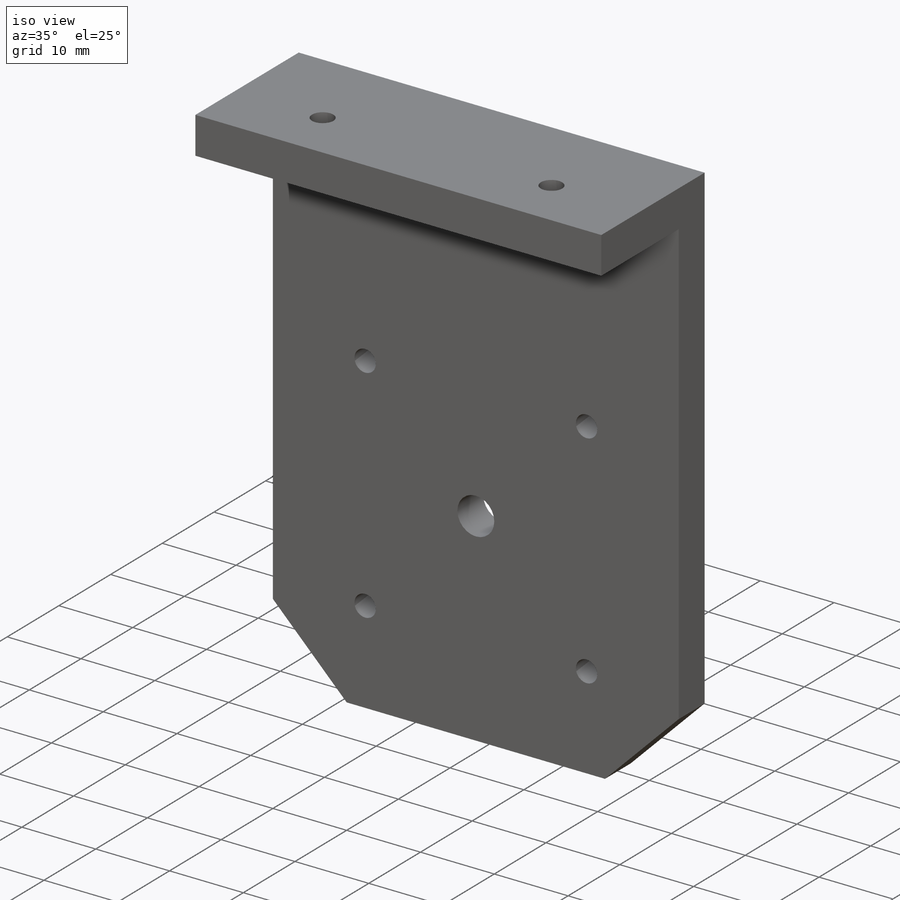
[diagram: iso view]
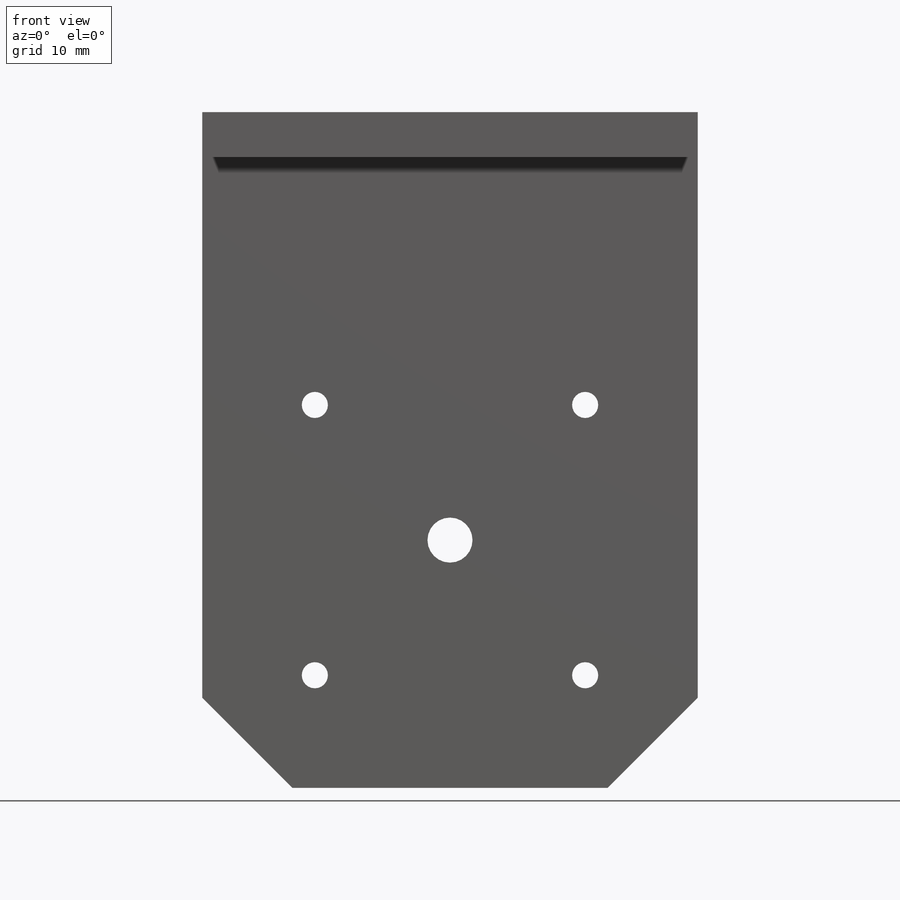
[diagram: front view]
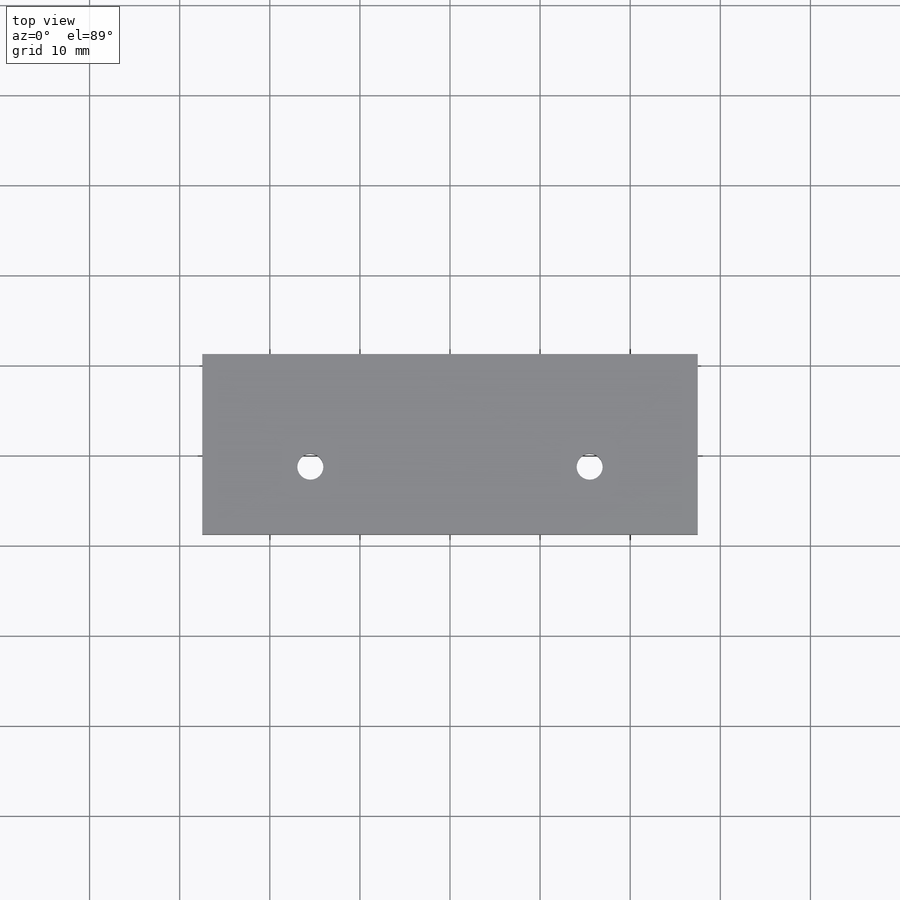
[diagram: top view]
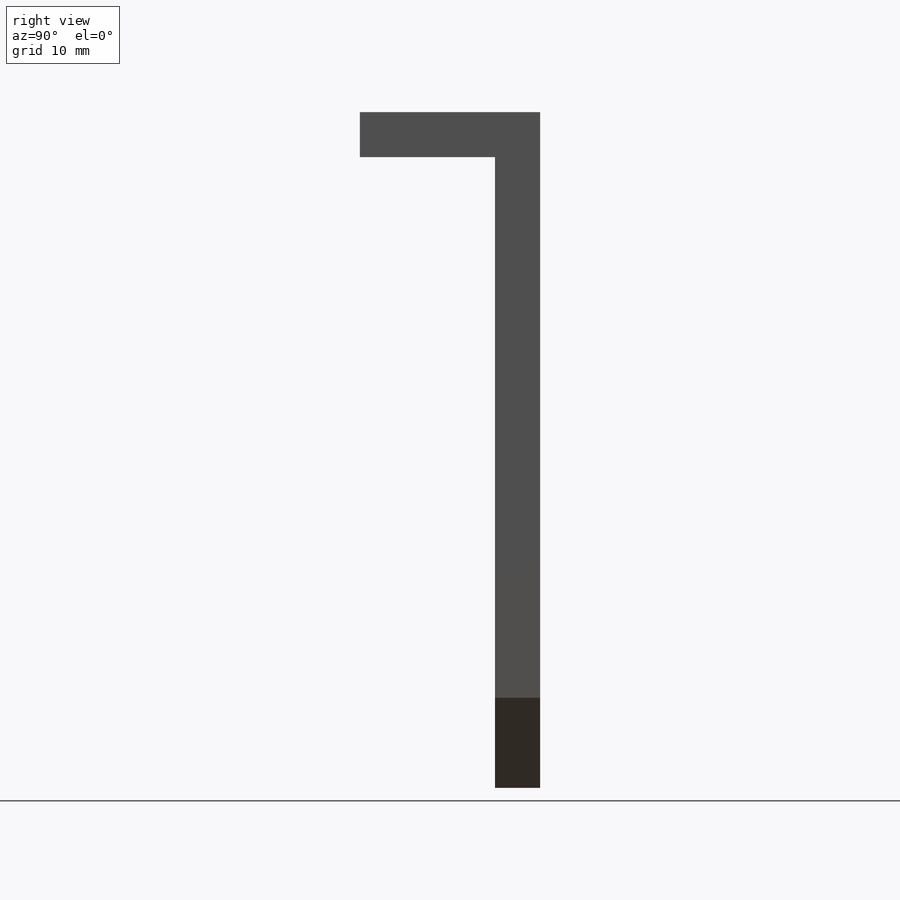
[diagram: right view]
SOLIDWORKS PART (.sldprt)
format: sldprt  version: not decoded by parser v0  size: 249,344 bytes
history: native  units: mm
features: sketch x7, plane x3, extrude x2, hole x2, material x1, cut_extrude x1 (+9 scaffold rows collapsed)
feature tree (25):
  scaffold x9  (default folders/planes/origin — collapsed)
  material  "Material <not specified>"
  plane  "Ön Düzlem"
  plane  "Üst Düzlem"
  plane  "Sağ Düzlem"
  sketch  "Sketch1"  dims[D1=55.0mm D2=75.0mm D3=10.0mm D4=10.0mm D5=10.0mm D6=10.0mm]
  extrude  "Boss-Extrude1"  Depth=5mm
  sketch  "Sketch2"  dims[D1=27.5mm D2=27.5mm]
  cut_extrude  "Cut-Extrude1"  [1 undecoded]
  sketch  "Sketch3"  dims[D1=5.0mm]
  extrude  "Boss-Extrude2"  Depth=15mm
  hole  "CSK for M2.5 Flat Head Machine Screw1"  Diameter=2.9mm Depth=5mm
  sketch  "Sketch5"  dims[c1.D1=12.0mm c1.D2=~13.711403mm c2.D2=90.0deg c3.D2=7.5mm c3.D3=7.5mm c3.D4=12.0mm]
  sketch  "Sketch4"  dims[hole-wizard template sketch: 59 standard entries collapsed; hole parameters above]
  hole  "CSK for M2.5 Flat Head Machine Screw2"  Diameter=2.9mm Depth=5mm
  sketch  "Sketch7"
  sketch  "Sketch6"  dims[hole-wizard template sketch: 59 standard entries collapsed; hole parameters above]
decode coverage: 10 of 12 modeling features carry decoded parameters
note: ~ marks probable driven/reference dimensions
note: 1 parameter value undecoded
note: suppression state not decoded; provenance and decode notes live in map.json
